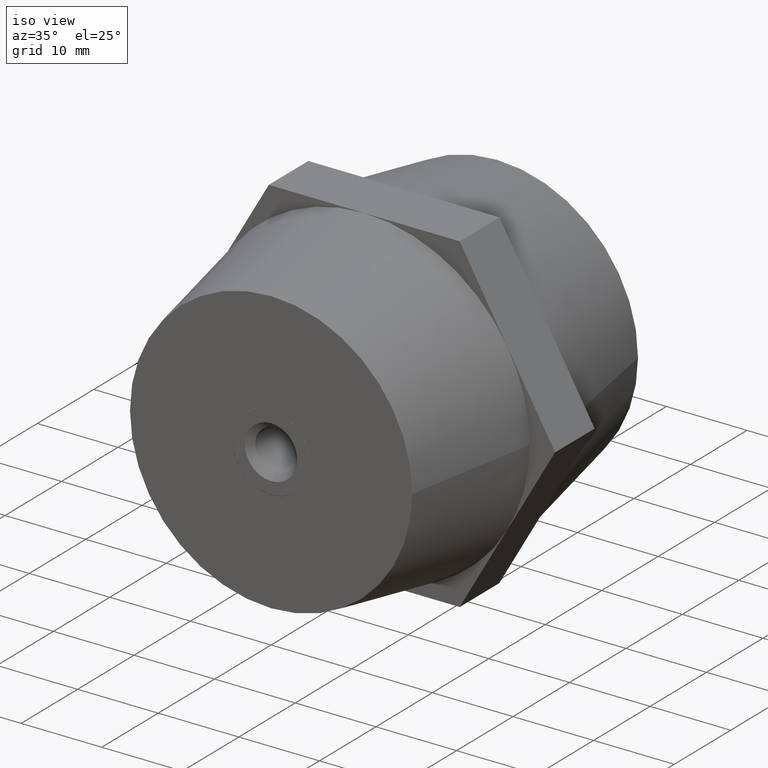
[diagram: clean part render]
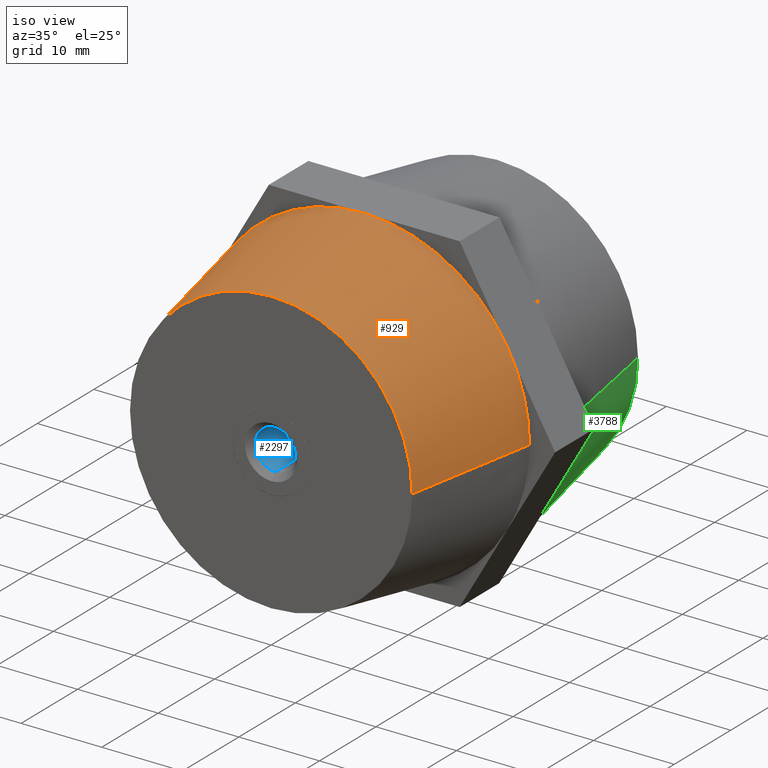
[diagram: same view with three faces highlighted in distinct colors, each labeled with its STEP entity id]
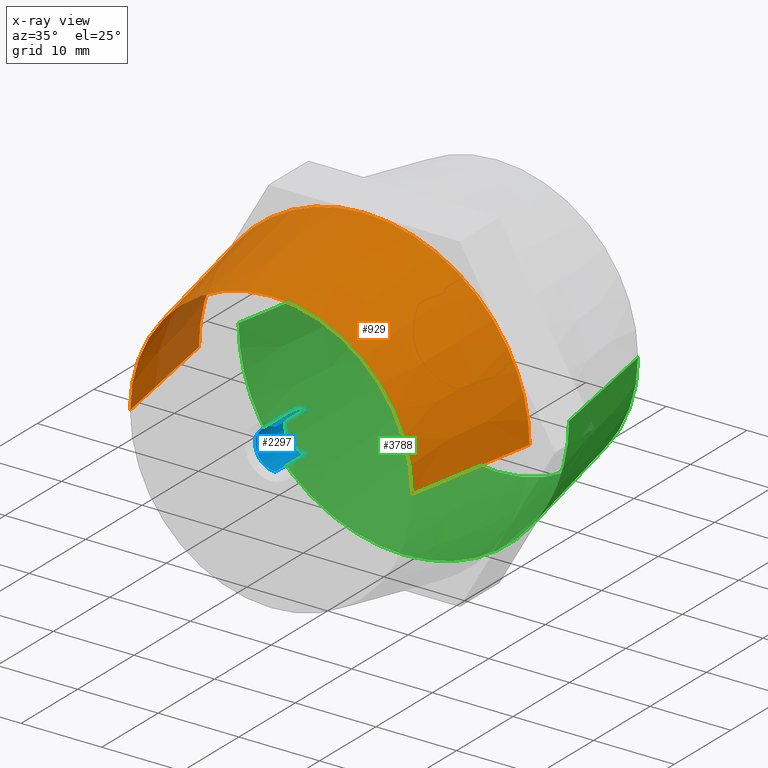
[diagram: x-ray of the same camera — body ghosted, the three highlighted faces saturated]
A machine part, iso view with three faces highlighted in distinct colors.
The next image is the same camera in x-ray (body ghosted, the three faces saturated) — at least one of them is partly hidden behind the body in this view.
Their STEP definitions:

[orange] entity #929 — the highlighted conical surface has half-angle 10.305 deg.
#60 = EDGE_CURVE ( 'NONE', #1641, #438, #2685, .T. ) ;
#118 = ORIENTED_EDGE ( 'NONE', *, *, #3268, .F. ) ;
#152 = DIRECTION ( 'NONE',  ( 0.0000000000000000000, 0.0000000000000000000, 1.000000000000000000 ) ) ;
#273 = CIRCLE ( 'NONE', #524, 20.50000000000000000 ) ;
#280 = DIRECTION ( 'NONE',  ( -1.224646799147352000E-016, 1.000000000000000000, 0.0000000000000000000 ) ) ;
#298 = EDGE_CURVE ( 'NONE', #438, #432, #2318, .T. ) ;
#403 = VECTOR ( 'NONE', #420, 1000.000000000000100 ) ;
#420 = DIRECTION ( 'NONE',  ( 0.1788854381999839300, 0.9838699100999073200, 2.190714793056821400E-017 ) ) ;
#432 = VERTEX_POINT ( 'NONE', #1250 ) ;
#438 = VERTEX_POINT ( 'NONE', #579 ) ;
#480 = CARTESIAN_POINT ( 'NONE',  ( 20.50000000000000400, -3.499999999999997300, 2.510525938252074500E-015 ) ) ;
#524 = AXIS2_PLACEMENT_3D ( 'NONE', #963, #1848, #2450 ) ;
#531 = DIRECTION ( 'NONE',  ( -1.224646799147352000E-016, 1.000000000000000000, 0.0000000000000000000 ) ) ;
#579 = CARTESIAN_POINT ( 'NONE',  ( -17.75352077758099900, -3.500000000000000000, 10.25000000000000000 ) ) ;
#585 = AXIS2_PLACEMENT_3D ( 'NONE', #1096, #2841, #152 ) ;
#615 = AXIS2_PLACEMENT_3D ( 'NONE', #1586, #2212, #1919 ) ;
#655 = LINE ( 'NONE', #480, #403 ) ;
#696 = ORIENTED_EDGE ( 'NONE', *, *, #3682, .T. ) ;
#733 = ORIENTED_EDGE ( 'NONE', *, *, #2976, .F. ) ;
#815 = ORIENTED_EDGE ( 'NONE', *, *, #60, .F. ) ;
#910 = CARTESIAN_POINT ( 'NONE',  ( -17.49999999999999600, -20.00000000000000400, 0.0000000000000000000 ) ) ;
#929 = ADVANCED_FACE ( 'NONE', ( #1593 ), #2286, .T. ) ;
#960 = AXIS2_PLACEMENT_3D ( 'NONE', #2354, #531, #1755 ) ;
#963 = CARTESIAN_POINT ( 'NONE',  ( 2.877919977996279900E-015, -3.500000000000000000, 4.564592615003799800E-016 ) ) ;
#1016 = VERTEX_POINT ( 'NONE', #2382 ) ;
#1065 = AXIS2_PLACEMENT_3D ( 'NONE', #3273, #280, #1210 ) ;
#1087 = CARTESIAN_POINT ( 'NONE',  ( -20.49999999999999600, -3.500000000000002700, 0.0000000000000000000 ) ) ;
#1096 = CARTESIAN_POINT ( 'NONE',  ( 2.877919977996279900E-015, -3.500000000000000000, 4.564592615003799800E-016 ) ) ;
#1159 = CARTESIAN_POINT ( 'NONE',  ( 17.50000000000000400, -19.99999999999999600, 2.326828918379971800E-015 ) ) ;
#1210 = DIRECTION ( 'NONE',  ( -1.000000000000000000, -1.269309860470834500E-016, 0.0000000000000000000 ) ) ;
#1250 = CARTESIAN_POINT ( 'NONE',  ( -1.267092194780394200E-016, -3.500000000000000000, 20.50000000000000000 ) ) ;
#1586 = CARTESIAN_POINT ( 'NONE',  ( 2.877919977996279900E-015, -3.500000000000000000, 4.564592615003799800E-016 ) ) ;
#1593 = FACE_OUTER_BOUND ( 'NONE', #2191, .T. ) ;
#1611 = CARTESIAN_POINT ( 'NONE',  ( 17.75352077758099900, -3.500000000000000000, 10.25000000000000000 ) ) ;
#1641 = VERTEX_POINT ( 'NONE', #2033 ) ;
#1755 = DIRECTION ( 'NONE',  ( -1.000000000000000000, -1.982541115402065400E-016, 0.0000000000000000000 ) ) ;
#1782 = LINE ( 'NONE', #1087, #3601 ) ;
#1848 = DIRECTION ( 'NONE',  ( 0.0000000000000000000, 1.000000000000000000, 0.0000000000000000000 ) ) ;
#1919 = DIRECTION ( 'NONE',  ( 0.0000000000000000000, 0.0000000000000000000, 1.000000000000000000 ) ) ;
#1964 = ORIENTED_EDGE ( 'NONE', *, *, #298, .F. ) ;
#2033 = CARTESIAN_POINT ( 'NONE',  ( -20.49999999999999600, -3.500000000000000000, 0.0000000000000000000 ) ) ;
#2062 = CARTESIAN_POINT ( 'NONE',  ( 2.877919977996279900E-015, -3.500000000000000000, 0.0000000000000000000 ) ) ;
#2191 = EDGE_LOOP ( 'NONE', ( #2921, #696, #3211, #733, #1964, #815, #118 ) ) ;
#2212 = DIRECTION ( 'NONE',  ( 0.0000000000000000000, 1.000000000000000000, 0.0000000000000000000 ) ) ;
#2217 = EDGE_CURVE ( 'NONE', #2929, #2244, #3435, .T. ) ;
#2244 = VERTEX_POINT ( 'NONE', #1159 ) ;
#2247 = AXIS2_PLACEMENT_3D ( 'NONE', #2062, #3841, #2906 ) ;
#2286 = CONICAL_SURFACE ( 'NONE', #2247, 20.50000000000000000, 0.1798534997924791400 ) ;
#2318 = CIRCLE ( 'NONE', #1065, 20.50000000000000000 ) ;
#2354 = CARTESIAN_POINT ( 'NONE',  ( 4.898587196589409900E-015, -20.00000000000000000, 0.0000000000000000000 ) ) ;
#2367 = EDGE_CURVE ( 'NONE', #2459, #1016, #2457, .T. ) ;
#2382 = CARTESIAN_POINT ( 'NONE',  ( 20.50000000000000400, -3.500000000000000000, 2.510525938252074500E-015 ) ) ;
#2450 = DIRECTION ( 'NONE',  ( 0.0000000000000000000, 0.0000000000000000000, 1.000000000000000000 ) ) ;
#2457 = CIRCLE ( 'NONE', #615, 20.50000000000000000 ) ;
#2459 = VERTEX_POINT ( 'NONE', #1611 ) ;
#2685 = CIRCLE ( 'NONE', #585, 20.50000000000000000 ) ;
#2841 = DIRECTION ( 'NONE',  ( 0.0000000000000000000, 1.000000000000000000, 0.0000000000000000000 ) ) ;
#2906 = DIRECTION ( 'NONE',  ( -1.000000000000000000, -1.269309860470834500E-016, 0.0000000000000000000 ) ) ;
#2921 = ORIENTED_EDGE ( 'NONE', *, *, #2217, .T. ) ;
#2929 = VERTEX_POINT ( 'NONE', #910 ) ;
#2976 = EDGE_CURVE ( 'NONE', #432, #2459, #273, .T. ) ;
#3183 = DIRECTION ( 'NONE',  ( -0.1788854381999841500, 0.9838699100999073200, 0.0000000000000000000 ) ) ;
#3211 = ORIENTED_EDGE ( 'NONE', *, *, #2367, .F. ) ;
#3268 = EDGE_CURVE ( 'NONE', #2929, #1641, #1782, .T. ) ;
#3273 = CARTESIAN_POINT ( 'NONE',  ( 2.877919977996279900E-015, -3.500000000000000000, 0.0000000000000000000 ) ) ;
#3435 = CIRCLE ( 'NONE', #960, 17.50000000000000000 ) ;
#3601 = VECTOR ( 'NONE', #3183, 1000.000000000000100 ) ;
#3682 = EDGE_CURVE ( 'NONE', #2244, #1016, #655, .T. ) ;
#3841 = DIRECTION ( 'NONE',  ( -1.224646799147352000E-016, 1.000000000000000000, 0.0000000000000000000 ) ) ;

[blue] entity #2297 — the highlighted cylindrical surface (edge-blend (fillet) strip) has radius 2.5 mm, axis along (0, -1, -0).
#14 = ORIENTED_EDGE ( 'NONE', *, *, #3411, .T. ) ;
#52 = CARTESIAN_POINT ( 'NONE',  ( 0.0000000000000000000, 7.250000000000000000, 2.500000000000000000 ) ) ;
#256 = EDGE_CURVE ( 'NONE', #1512, #2844, #424, .T. ) ;
#394 = DIRECTION ( 'NONE',  ( 0.0000000000000000000, 1.000000000000000000, 0.0000000000000000000 ) ) ;
#424 = LINE ( 'NONE', #1156, #2542 ) ;
#550 = DIRECTION ( 'NONE',  ( 0.0000000000000000000, 1.000000000000000000, 0.0000000000000000000 ) ) ;
#556 = DIRECTION ( 'NONE',  ( 0.0000000000000000000, 1.000000000000000000, 0.0000000000000000000 ) ) ;
#570 = CARTESIAN_POINT ( 'NONE',  ( 0.0000000000000000000, 8.000000000000000000, 2.500000000000000000 ) ) ;
#670 = ORIENTED_EDGE ( 'NONE', *, *, #3021, .F. ) ;
#873 = DIRECTION ( 'NONE',  ( 0.0000000000000000000, 1.000000000000000000, 0.0000000000000000000 ) ) ;
#875 = CYLINDRICAL_SURFACE ( 'NONE', #3337, 2.500000000000000000 ) ;
#944 = AXIS2_PLACEMENT_3D ( 'NONE', #2112, #2293, #2317 ) ;
#950 = EDGE_LOOP ( 'NONE', ( #670, #2904, #14, #2512 ) ) ;
#988 = CIRCLE ( 'NONE', #944, 2.500000000000000000 ) ;
#1001 = CARTESIAN_POINT ( 'NONE',  ( 0.0000000000000000000, 7.250000000000000000, 0.0000000000000000000 ) ) ;
#1011 = DIRECTION ( 'NONE',  ( 0.0000000000000000000, 0.0000000000000000000, 1.000000000000000000 ) ) ;
#1156 = CARTESIAN_POINT ( 'NONE',  ( 3.061616997868383100E-016, 8.000000000000000000, -2.500000000000000000 ) ) ;
#1484 = CARTESIAN_POINT ( 'NONE',  ( 0.0000000000000000000, 2.000000000000000000, 2.500000000000000000 ) ) ;
#1496 = VECTOR ( 'NONE', #873, 1000.000000000000000 ) ;
#1503 = DIRECTION ( 'NONE',  ( 0.0000000000000000000, 0.0000000000000000000, 1.000000000000000000 ) ) ;
#1512 = VERTEX_POINT ( 'NONE', #2902 ) ;
#1712 = VERTEX_POINT ( 'NONE', #1484 ) ;
#1813 = VERTEX_POINT ( 'NONE', #52 ) ;
#1992 = LINE ( 'NONE', #570, #1496 ) ;
#2112 = CARTESIAN_POINT ( 'NONE',  ( 0.0000000000000000000, 2.000000000000000000, 0.0000000000000000000 ) ) ;
#2168 = CIRCLE ( 'NONE', #2267, 2.500000000000000000 ) ;
#2267 = AXIS2_PLACEMENT_3D ( 'NONE', #1001, #394, #1011 ) ;
#2289 = EDGE_CURVE ( 'NONE', #1712, #1813, #1992, .T. ) ;
#2293 = DIRECTION ( 'NONE',  ( 0.0000000000000000000, 1.000000000000000000, 0.0000000000000000000 ) ) ;
#2297 = ADVANCED_FACE ( 'NONE', ( #2926 ), #875, .F. ) ;
#2317 = DIRECTION ( 'NONE',  ( 0.0000000000000000000, 0.0000000000000000000, 1.000000000000000000 ) ) ;
#2512 = ORIENTED_EDGE ( 'NONE', *, *, #2289, .F. ) ;
#2542 = VECTOR ( 'NONE', #550, 1000.000000000000000 ) ;
#2660 = CARTESIAN_POINT ( 'NONE',  ( 0.0000000000000000000, 8.000000000000000000, 0.0000000000000000000 ) ) ;
#2844 = VERTEX_POINT ( 'NONE', #3283 ) ;
#2902 = CARTESIAN_POINT ( 'NONE',  ( 3.061616997868383100E-016, 2.000000000000000000, -2.500000000000000000 ) ) ;
#2904 = ORIENTED_EDGE ( 'NONE', *, *, #256, .T. ) ;
#2926 = FACE_OUTER_BOUND ( 'NONE', #950, .T. ) ;
#3021 = EDGE_CURVE ( 'NONE', #1512, #1712, #988, .T. ) ;
#3283 = CARTESIAN_POINT ( 'NONE',  ( 3.061616997868383100E-016, 7.250000000000000000, -2.500000000000000000 ) ) ;
#3337 = AXIS2_PLACEMENT_3D ( 'NONE', #2660, #556, #1503 ) ;
#3411 = EDGE_CURVE ( 'NONE', #2844, #1813, #2168, .T. ) ;

[green] entity #3788 — the highlighted conical surface has half-angle 10.305 deg.
#33 = CIRCLE ( 'NONE', #3140, 20.50000000000000000 ) ;
#97 = CARTESIAN_POINT ( 'NONE',  ( 17.50000000000000000, 20.00000000000000400, 0.0000000000000000000 ) ) ;
#100 = VECTOR ( 'NONE', #2400, 1000.000000000000100 ) ;
#228 = CARTESIAN_POINT ( 'NONE',  ( -17.50000000000000000, 19.99999999999999600, 2.143131898507868200E-015 ) ) ;
#307 = CARTESIAN_POINT ( 'NONE',  ( 17.50000000000000000, 20.00000000000000400, 0.0000000000000000000 ) ) ;
#312 = VERTEX_POINT ( 'NONE', #3020 ) ;
#364 = LINE ( 'NONE', #228, #843 ) ;
#406 = EDGE_CURVE ( 'NONE', #1247, #312, #1990, .T. ) ;
#427 = ORIENTED_EDGE ( 'NONE', *, *, #3030, .T. ) ;
#500 = VERTEX_POINT ( 'NONE', #3692 ) ;
#527 = DIRECTION ( 'NONE',  ( -1.000000000000000000, -1.269309860470834500E-016, 0.0000000000000000000 ) ) ;
#636 = DIRECTION ( 'NONE',  ( -1.224646799147352000E-016, 1.000000000000000000, 0.0000000000000000000 ) ) ;
#843 = VECTOR ( 'NONE', #1797, 1000.000000000000100 ) ;
#861 = CARTESIAN_POINT ( 'NONE',  ( 17.75352077758099900, 3.500000000000000000, -10.25000000000000000 ) ) ;
#881 = CARTESIAN_POINT ( 'NONE',  ( -2.624579619658250000E-031, 20.00000000000000000, 0.0000000000000000000 ) ) ;
#931 = CARTESIAN_POINT ( 'NONE',  ( -17.50000000000000000, 19.99999999999999600, 2.326828918379972200E-015 ) ) ;
#943 = CARTESIAN_POINT ( 'NONE',  ( -2.624579619658250000E-031, 20.00000000000000000, 0.0000000000000000000 ) ) ;
#994 = AXIS2_PLACEMENT_3D ( 'NONE', #881, #1183, #2359 ) ;
#1181 = ORIENTED_EDGE ( 'NONE', *, *, #2337, .F. ) ;
#1183 = DIRECTION ( 'NONE',  ( 1.224646799147352000E-016, -1.000000000000000000, 0.0000000000000000000 ) ) ;
#1214 = ORIENTED_EDGE ( 'NONE', *, *, #1744, .T. ) ;
#1247 = VERTEX_POINT ( 'NONE', #97 ) ;
#1412 = VERTEX_POINT ( 'NONE', #3167 ) ;
#1494 = DIRECTION ( 'NONE',  ( -1.224646799147352000E-016, 1.000000000000000000, 0.0000000000000000000 ) ) ;
#1551 = AXIS2_PLACEMENT_3D ( 'NONE', #3341, #1844, #2446 ) ;
#1654 = CARTESIAN_POINT ( 'NONE',  ( 2.020667218593134700E-015, 3.500000000000000000, 0.0000000000000000000 ) ) ;
#1715 = DIRECTION ( 'NONE',  ( -1.224646799147352000E-016, 1.000000000000000000, 0.0000000000000000000 ) ) ;
#1730 = ORIENTED_EDGE ( 'NONE', *, *, #3156, .T. ) ;
#1744 = EDGE_CURVE ( 'NONE', #312, #3767, #3073, .T. ) ;
#1797 = DIRECTION ( 'NONE',  ( -0.1788854381999839300, -0.9838699100999073200, 2.190714793056821400E-017 ) ) ;
#1844 = DIRECTION ( 'NONE',  ( -1.224646799147352000E-016, 1.000000000000000000, 0.0000000000000000000 ) ) ;
#1846 = AXIS2_PLACEMENT_3D ( 'NONE', #1654, #2552, #2236 ) ;
#1990 = LINE ( 'NONE', #307, #100 ) ;
#2029 = EDGE_CURVE ( 'NONE', #1412, #500, #2871, .T. ) ;
#2052 = CIRCLE ( 'NONE', #2612, 17.50000000000000000 ) ;
#2131 = DIRECTION ( 'NONE',  ( -1.000000000000000000, -1.269309860470834500E-016, 0.0000000000000000000 ) ) ;
#2236 = DIRECTION ( 'NONE',  ( -1.000000000000000000, -1.269309860470834500E-016, 0.0000000000000000000 ) ) ;
#2245 = ORIENTED_EDGE ( 'NONE', *, *, #406, .T. ) ;
#2337 = EDGE_CURVE ( 'NONE', #1247, #3823, #2052, .T. ) ;
#2359 = DIRECTION ( 'NONE',  ( 1.000000000000000000, 1.982541115402065400E-016, 0.0000000000000000000 ) ) ;
#2400 = DIRECTION ( 'NONE',  ( 0.1788854381999841500, -0.9838699100999073200, 0.0000000000000000000 ) ) ;
#2446 = DIRECTION ( 'NONE',  ( -1.000000000000000000, -1.269309860470834500E-016, 0.0000000000000000000 ) ) ;
#2528 = ORIENTED_EDGE ( 'NONE', *, *, #3082, .F. ) ;
#2552 = DIRECTION ( 'NONE',  ( -1.224646799147352000E-016, 1.000000000000000000, 0.0000000000000000000 ) ) ;
#2612 = AXIS2_PLACEMENT_3D ( 'NONE', #943, #636, #3026 ) ;
#2712 = EDGE_LOOP ( 'NONE', ( #2528, #1181, #2245, #1214, #427, #1730, #3049 ) ) ;
#2719 = CARTESIAN_POINT ( 'NONE',  ( 3.004629197474319600E-015, 3.500000000000000000, -20.50000000000000000 ) ) ;
#2797 = CONICAL_SURFACE ( 'NONE', #994, 17.50000000000000000, 0.1798534997924791400 ) ;
#2871 = CIRCLE ( 'NONE', #1846, 20.50000000000000000 ) ;
#2984 = AXIS2_PLACEMENT_3D ( 'NONE', #3269, #1494, #2131 ) ;
#3020 = CARTESIAN_POINT ( 'NONE',  ( 20.50000000000001800, 3.500000000000003600, 0.0000000000000000000 ) ) ;
#3026 = DIRECTION ( 'NONE',  ( -1.000000000000000000, -1.982541115402065400E-016, 0.0000000000000000000 ) ) ;
#3030 = EDGE_CURVE ( 'NONE', #3767, #3870, #33, .T. ) ;
#3049 = ORIENTED_EDGE ( 'NONE', *, *, #2029, .T. ) ;
#3073 = CIRCLE ( 'NONE', #2984, 20.50000000000000000 ) ;
#3082 = EDGE_CURVE ( 'NONE', #3823, #500, #364, .T. ) ;
#3140 = AXIS2_PLACEMENT_3D ( 'NONE', #3827, #1715, #527 ) ;
#3156 = EDGE_CURVE ( 'NONE', #3870, #1412, #3361, .T. ) ;
#3167 = CARTESIAN_POINT ( 'NONE',  ( -17.75352077758099900, 3.500000000000000000, -10.25000000000000000 ) ) ;
#3269 = CARTESIAN_POINT ( 'NONE',  ( 2.020667218593134700E-015, 3.500000000000000000, 0.0000000000000000000 ) ) ;
#3341 = CARTESIAN_POINT ( 'NONE',  ( 2.020667218593134700E-015, 3.500000000000000000, 0.0000000000000000000 ) ) ;
#3361 = CIRCLE ( 'NONE', #1551, 20.50000000000000000 ) ;
#3494 = FACE_OUTER_BOUND ( 'NONE', #2712, .T. ) ;
#3692 = CARTESIAN_POINT ( 'NONE',  ( -20.50000000000001400, 3.499999999999996400, 2.510525938252076100E-015 ) ) ;
#3767 = VERTEX_POINT ( 'NONE', #861 ) ;
#3788 = ADVANCED_FACE ( 'NONE', ( #3494 ), #2797, .T. ) ;
#3823 = VERTEX_POINT ( 'NONE', #931 ) ;
#3827 = CARTESIAN_POINT ( 'NONE',  ( 2.020667218593134700E-015, 3.500000000000000000, 0.0000000000000000000 ) ) ;
#3870 = VERTEX_POINT ( 'NONE', #2719 ) ;